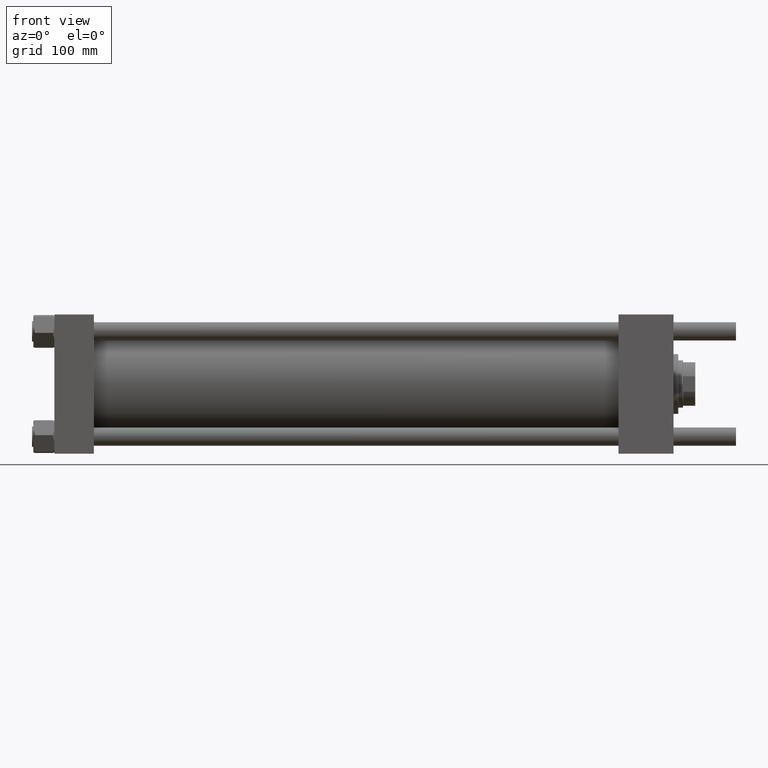
[diagram: clean part render]
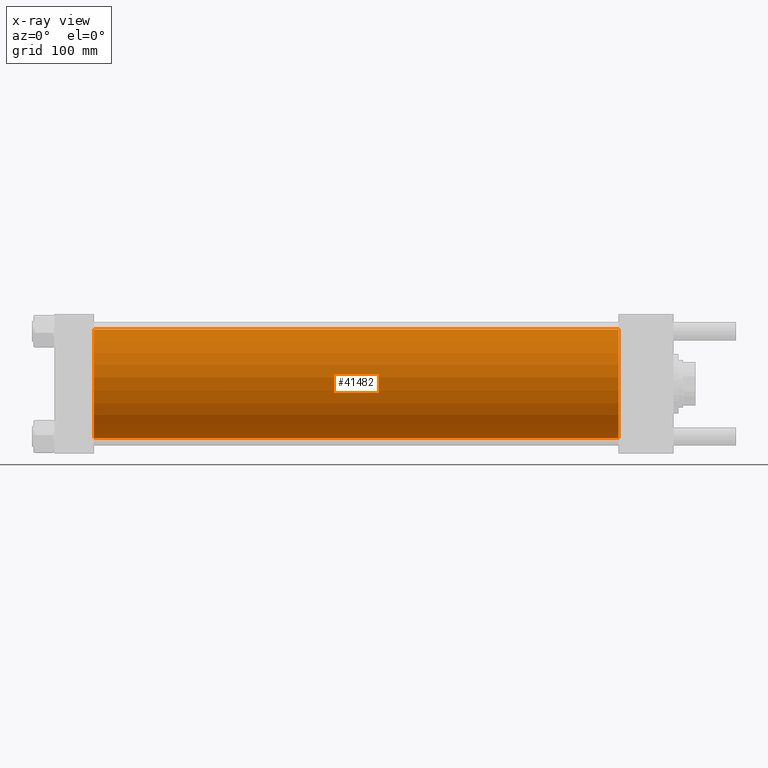
[diagram: x-ray — body ghosted, one internal face saturated and labeled with its STEP entity id]
A machine part, front view, then the same camera in x-ray: the body is ghosted and one INTERNAL B-rep face — a face not visible from any outside direction — is saturated and labeled: STEP entity #41482.
In plain terms, the highlighted cylindrical surface (partial cylindrical patch) has radius 80 mm, axis along (-1, -0, -0).
Its self-contained STEP definition (entity closure, byte-faithful):
#4433 = CARTESIAN_POINT ( 'NONE',  ( 830.0000000000001137, 7.195089179213615410E-15, -80.00000000000000000 ) ) ;
#6090 = LINE ( 'NONE', #54853, #55466 ) ;
#9141 = AXIS2_PLACEMENT_3D ( 'NONE', #13152, #10445, #23503 ) ;
#10289 = DIRECTION ( 'NONE',  ( 1.000000000000000000, 0.000000000000000000, 0.000000000000000000 ) ) ;
#10445 = DIRECTION ( 'NONE',  ( -1.000000000000000000, -0.000000000000000000, -0.000000000000000000 ) ) ;
#11136 = CARTESIAN_POINT ( 'NONE',  ( 58.00000000000000000, -2.602085213965210642E-15, 0.000000000000000000 ) ) ;
#12394 = CARTESIAN_POINT ( 'NONE',  ( 830.0000000000001137, -2.602085213965210642E-15, 80.00000000000000000 ) ) ;
#13152 = CARTESIAN_POINT ( 'NONE',  ( 830.0000000000001137, -2.602085213965210642E-15, 0.000000000000000000 ) ) ;
#14802 = CYLINDRICAL_SURFACE ( 'NONE', #9141, 80.00000000000000000 ) ;
#17198 = CARTESIAN_POINT ( 'NONE',  ( 58.00000000000000000, 7.195089179213615410E-15, -80.00000000000000000 ) ) ;
#17224 = ORIENTED_EDGE ( 'NONE', *, *, #24252, .F. ) ;
#17623 = VECTOR ( 'NONE', #30140, 1000.000000000000000 ) ;
#18583 = FACE_OUTER_BOUND ( 'NONE', #31311, .T. ) ;
#19652 = CIRCLE ( 'NONE', #52992, 80.00000000000000000 ) ;
#21269 = CARTESIAN_POINT ( 'NONE',  ( 58.00000000000000000, -2.602085213965210642E-15, 80.00000000000000000 ) ) ;
#23503 = DIRECTION ( 'NONE',  ( 0.000000000000000000, 0.000000000000000000, 1.000000000000000000 ) ) ;
#23791 = DIRECTION ( 'NONE',  ( -1.000000000000000000, -0.000000000000000000, -0.000000000000000000 ) ) ;
#24252 = EDGE_CURVE ( 'NONE', #43300, #41336, #6090, .T. ) ;
#28733 = CIRCLE ( 'NONE', #50986, 80.00000000000000000 ) ;
#29693 = EDGE_CURVE ( 'NONE', #43300, #44540, #28733, .T. ) ;
#30140 = DIRECTION ( 'NONE',  ( -1.000000000000000000, -0.000000000000000000, -0.000000000000000000 ) ) ;
#31311 = EDGE_LOOP ( 'NONE', ( #53789, #36064, #33492, #17224 ) ) ;
#33492 = ORIENTED_EDGE ( 'NONE', *, *, #56275, .F. ) ;
#34925 = DIRECTION ( 'NONE',  ( 1.000000000000000000, 0.000000000000000000, 0.000000000000000000 ) ) ;
#35501 = CARTESIAN_POINT ( 'NONE',  ( 830.0000000000001137, -2.602085213965210642E-15, 0.000000000000000000 ) ) ;
#36064 = ORIENTED_EDGE ( 'NONE', *, *, #51422, .T. ) ;
#37265 = DIRECTION ( 'NONE',  ( 0.000000000000000000, 0.000000000000000000, -1.000000000000000000 ) ) ;
#41336 = VERTEX_POINT ( 'NONE', #21269 ) ;
#41482 = ADVANCED_FACE ( 'NONE', ( #18583 ), #14802, .F. ) ;
#43300 = VERTEX_POINT ( 'NONE', #12394 ) ;
#44340 = VERTEX_POINT ( 'NONE', #17198 ) ;
#44540 = VERTEX_POINT ( 'NONE', #4433 ) ;
#48556 = DIRECTION ( 'NONE',  ( 0.000000000000000000, 0.000000000000000000, -1.000000000000000000 ) ) ;
#48702 = CARTESIAN_POINT ( 'NONE',  ( 830.0000000000001137, 7.195089179213615410E-15, -80.00000000000000000 ) ) ;
#50986 = AXIS2_PLACEMENT_3D ( 'NONE', #35501, #34925, #48556 ) ;
#51422 = EDGE_CURVE ( 'NONE', #44540, #44340, #57425, .T. ) ;
#52992 = AXIS2_PLACEMENT_3D ( 'NONE', #11136, #10289, #37265 ) ;
#53789 = ORIENTED_EDGE ( 'NONE', *, *, #29693, .T. ) ;
#54853 = CARTESIAN_POINT ( 'NONE',  ( 830.0000000000001137, -2.602085213965210642E-15, 80.00000000000000000 ) ) ;
#55466 = VECTOR ( 'NONE', #23791, 1000.000000000000000 ) ;
#56275 = EDGE_CURVE ( 'NONE', #41336, #44340, #19652, .T. ) ;
#57425 = LINE ( 'NONE', #48702, #17623 ) ;